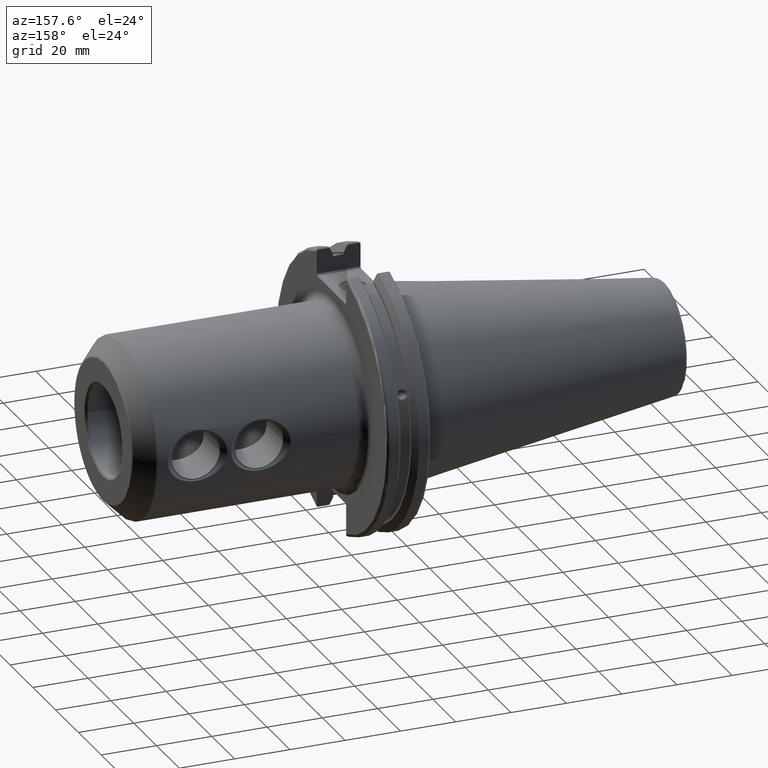
[diagram: clean part render]
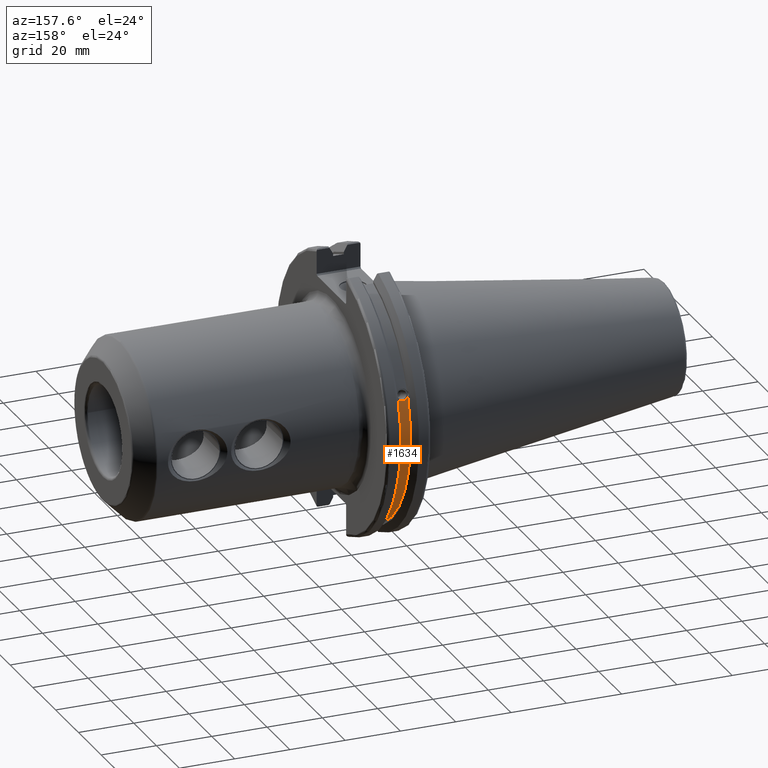
[diagram: same view with one face highlighted and labeled with its STEP entity id]
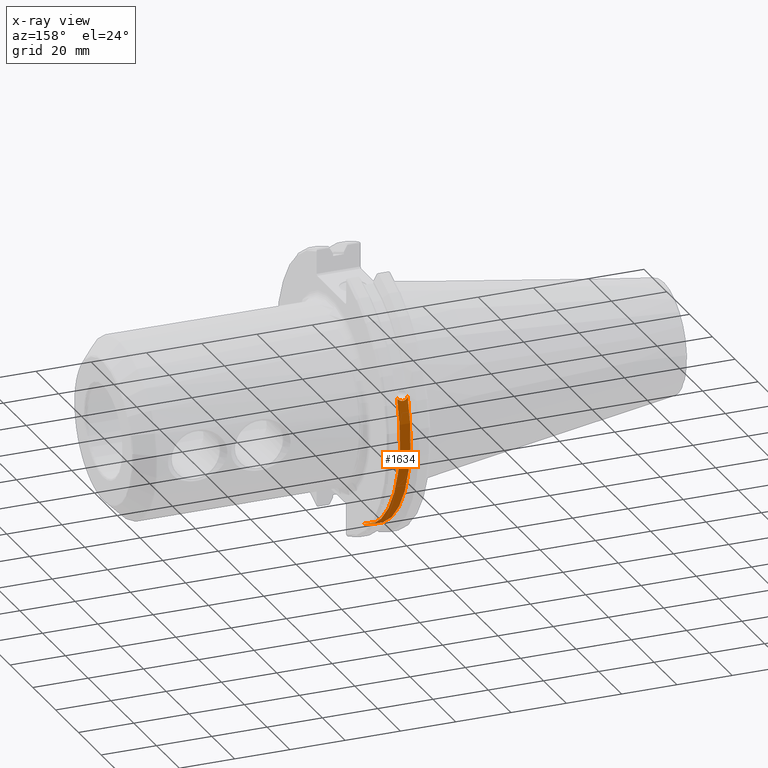
[diagram: x-ray of the same camera — body ghosted, the highlighted face saturated]
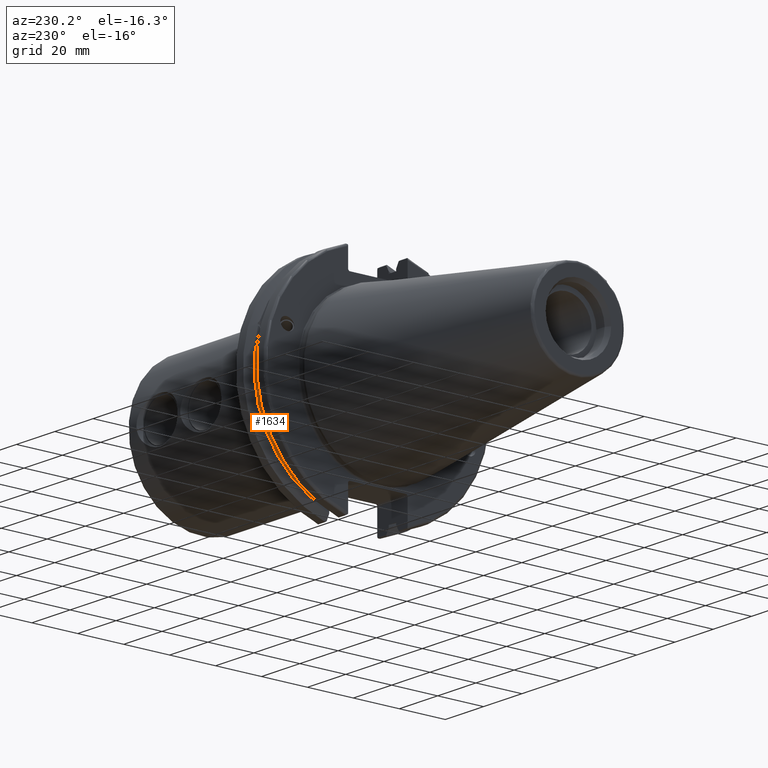
[diagram: same view with one face highlighted and labeled with its STEP entity id]
A machine part, auxiliary view. The second image highlights one B-rep face of the part: STEP entity #1634.
The next image is the same camera in x-ray: the body ghosted, the highlighted face saturated — about 0% of this face is hidden behind the body in this view.
A second angle (auxiliary view) of the same face is appended — the face is thin or edge-on in the first view.
In plain terms, the highlighted cylindrical surface (partial cylindrical patch) has radius 45.6435 mm, axis along (1, 0, 0).
Its self-contained STEP definition (entity closure, byte-faithful):
#204=FACE_OUTER_BOUND('',#319,.T.);
#319=EDGE_LOOP('',(#1489,#1490,#1491,#1492));
#356=B_SPLINE_CURVE_WITH_KNOTS('',3,(#2953,#2954,#2955,#2956,#2957,#2958,
#2959,#2960,#2961,#2962,#2963,#2964,#2965,#2966),.UNSPECIFIED.,.F.,.F.,
(4,2,2,2,2,2,4),(0.401548312576693,0.474697095495631,0.553813286063442,
0.632929476631254,0.712045667199066,0.791161857766877,0.864310640685816),
 .UNSPECIFIED.);
#439=LINE('',#3163,#533);
#533=VECTOR('',#2131,10.);
#639=CIRCLE('',#1824,45.6435);
#641=CIRCLE('',#1828,45.6435);
#728=VERTEX_POINT('',#2950);
#729=VERTEX_POINT('',#2952);
#774=VERTEX_POINT('',#3160);
#775=VERTEX_POINT('',#3162);
#915=EDGE_CURVE('',#729,#728,#356,.T.);
#976=EDGE_CURVE('',#775,#774,#439,.T.);
#1037=EDGE_CURVE('',#774,#729,#639,.T.);
#1039=EDGE_CURVE('',#775,#728,#641,.T.);
#1489=ORIENTED_EDGE('',*,*,#915,.T.);
#1490=ORIENTED_EDGE('',*,*,#1039,.F.);
#1491=ORIENTED_EDGE('',*,*,#976,.T.);
#1492=ORIENTED_EDGE('',*,*,#1037,.T.);
#1549=CYLINDRICAL_SURFACE('',#1827,45.6435);
#1634=ADVANCED_FACE('',(#204),#1549,.T.);
#1824=AXIS2_PLACEMENT_3D('',#3364,#2249,#2250);
#1827=AXIS2_PLACEMENT_3D('',#3367,#2255,#2256);
#1828=AXIS2_PLACEMENT_3D('',#3368,#2257,#2258);
#2131=DIRECTION('',(-1.,0.,0.));
#2249=DIRECTION('center_axis',(1.,0.,0.));
#2250=DIRECTION('ref_axis',(0.,0.,-1.));
#2255=DIRECTION('center_axis',(1.,0.,0.));
#2256=DIRECTION('ref_axis',(0.,1.,0.));
#2257=DIRECTION('center_axis',(1.,0.,0.));
#2258=DIRECTION('ref_axis',(0.,0.,-1.));
#2950=CARTESIAN_POINT('',(13.0491,43.1779814500336,14.7983448449669));
#2952=CARTESIAN_POINT('',(9.21910000000001,43.1779814500336,14.7983448449669));
#2953=CARTESIAN_POINT('Ctrl Pts',(9.21910000000001,43.1779814500336,14.7983448449669));
#2954=CARTESIAN_POINT('Ctrl Pts',(9.32532177598177,43.2545173750974,14.5750315766731));
#2955=CARTESIAN_POINT('Ctrl Pts',(9.47680807557666,43.3223492818373,14.3712521044637));
#2956=CARTESIAN_POINT('Ctrl Pts',(9.83560503400179,43.4340904392251,14.0300988117073));
#2957=CARTESIAN_POINT('Ctrl Pts',(10.0717203280543,43.4832903960863,13.8760243976176));
#2958=CARTESIAN_POINT('Ctrl Pts',(10.5891059167872,43.54802519266,13.6715068146718));
#2959=CARTESIAN_POINT('Ctrl Pts',(10.870379364774,43.5636826100883,13.6211104428929));
#2960=CARTESIAN_POINT('Ctrl Pts',(11.397820635226,43.5636826100883,13.6211104428929));
#2961=CARTESIAN_POINT('Ctrl Pts',(11.6790940832128,43.54802519266,13.6715068146718));
#2962=CARTESIAN_POINT('Ctrl Pts',(12.1964796719457,43.4832903960863,13.8760243976176));
#2963=CARTESIAN_POINT('Ctrl Pts',(12.4325949659982,43.4340904392251,14.0300988117073));
#2964=CARTESIAN_POINT('Ctrl Pts',(12.7913919244233,43.3223492818373,14.3712521044637));
#2965=CARTESIAN_POINT('Ctrl Pts',(12.9428782240182,43.2545173750974,14.5750315766731));
#2966=CARTESIAN_POINT('Ctrl Pts',(13.0491,43.1779814500336,14.7983448449669));
#3160=CARTESIAN_POINT('',(9.2191,12.95,-43.7678716897452));
#3162=CARTESIAN_POINT('',(13.0491,12.95,-43.7678716897452));
#3163=CARTESIAN_POINT('',(11.1341,12.95,-43.7678716897452));
#3364=CARTESIAN_POINT('Origin',(9.2191,0.,0.));
#3367=CARTESIAN_POINT('Origin',(11.1341,0.,0.));
#3368=CARTESIAN_POINT('Origin',(13.0491,0.,0.));